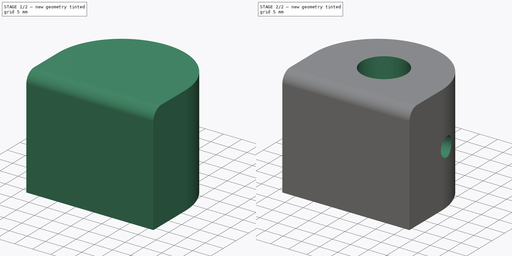
[diagram: build sequence overview — one tinted view per stage of 2, left to right]
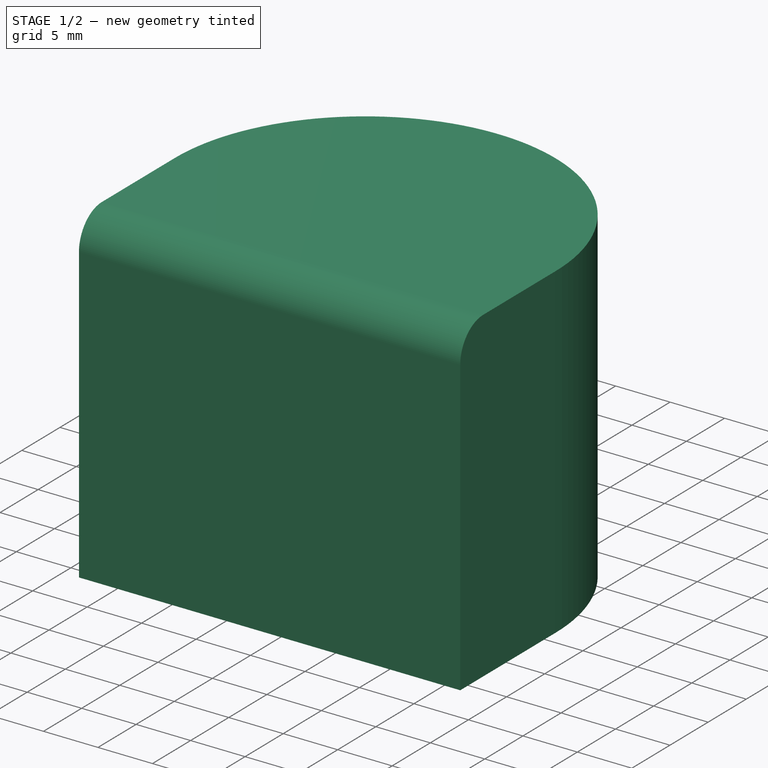
[diagram: stage 1 of 2 — iso view after this stage's code; geometry added in this stage tinted green]
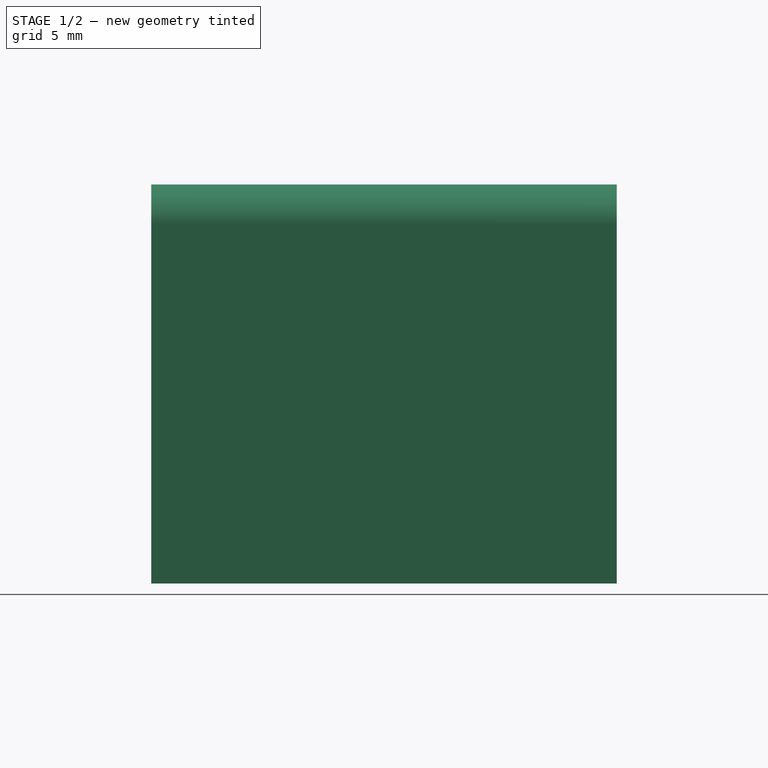
[diagram: stage 1 of 2 — front view after this stage's code; geometry added in this stage tinted green]
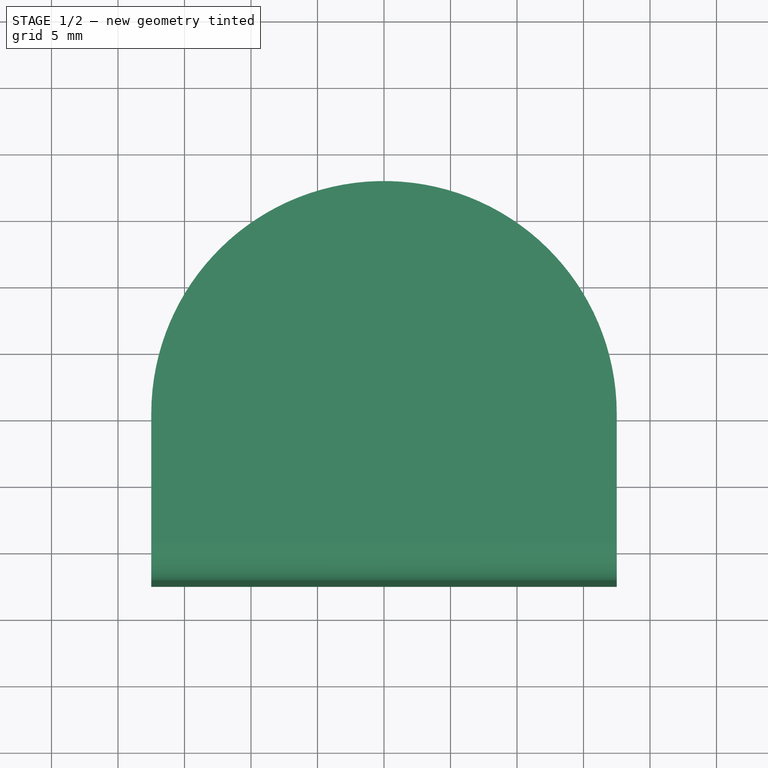
[diagram: stage 1 of 2 — top view after this stage's code; geometry added in this stage tinted green]
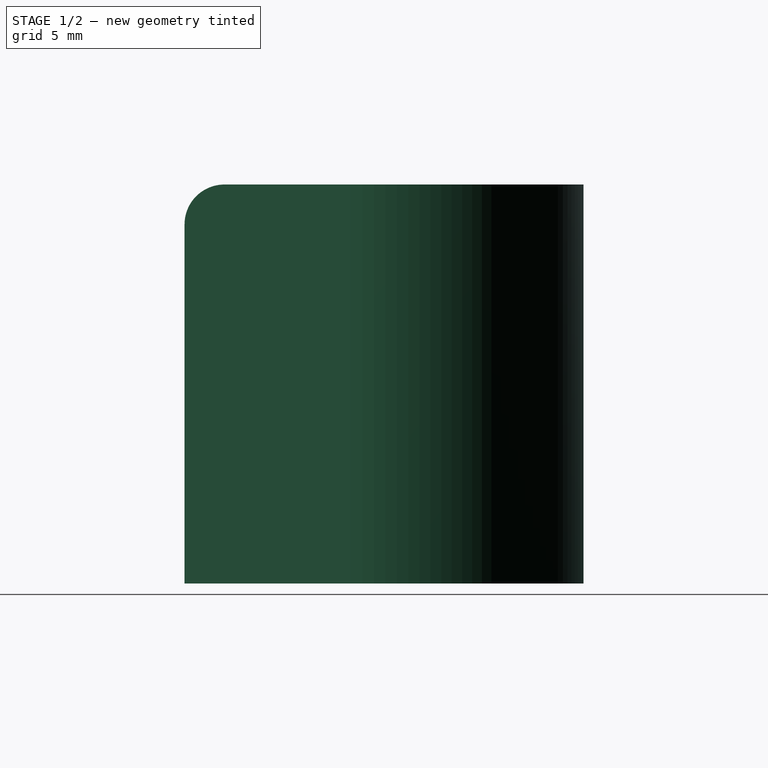
[diagram: stage 1 of 2 — right view after this stage's code; geometry added in this stage tinted green]
FCSTD DOCUMENT  (FreeCAD 0.18R4 (GitTag))
Label: ID-003-00-MRS
License: All rights reserved
LicenseURL: http://en.wikipedia.org/wiki/All_rights_reserved
objects: Sketcher::SketchObject×3, PartDesign::Hole×2, PartDesign::Pad×1, PartDesign::Fillet×1, PartDesign::Body×1
note: 11 computed .brp shape members not serialized (recipe doc carries the construction recipe); baked Part::Feature solids carry a one-line shape summary decoded from their .brp

FEATURE [Sketcher::SketchObject] Sketch
  MapMode = 5
  Support = -> [XY_Plane]
  sketch-geometry (4):
    g0: LineSegment StartX=-17.5 StartY=2.1e-15 StartZ=0 EndX=-17.5 EndY=-12.5 EndZ=0
    g1: LineSegment StartX=-17.5 StartY=-12.5 StartZ=0 EndX=17.5 EndY=-12.5 EndZ=0
    g2: LineSegment StartX=17.5 StartY=-12.5 StartZ=0 EndX=17.5 EndY=0 EndZ=0
    g3: ArcOfCircle CenterX=0 CenterY=0 CenterZ=0 NormalX=0 NormalY=0 NormalZ=1 AngleXU=0 Radius=17.5 StartAngle=0 EndAngle=3.14159
  constraints (15):
    c: Coincident(g0,g1)
    c: Coincident(g1,g2)
    c: Horizontal(g1)
    c: Vertical(g2)
    c: Vertical(g0)
    c: Equal(g2,g0)
    c: Coincident(g2,g3)
    c: Coincident(g0,g3)
    c: Horizontal(g3,g2)
    c: DistanceX(g1,g1) = 35
    c: DistanceY(g1,g3) = 12.5
    c: DistanceX(g0,g3) = 17.5
    c: DistanceY(g0,g0) = 12.5
    c: Radius(g3) = 17.5
    c: Coincident(g3,g-1)
FEATURE [PartDesign::Pad] Pad
  Length = 30
  Length2 = 100
  Midplane = true
  Profile = -> Sketch
  Type = 0
FEATURE [PartDesign::Fillet] Fillet
  Base = -> Pad [Edge7]
  BaseFeature = -> Pad
  Radius = 3
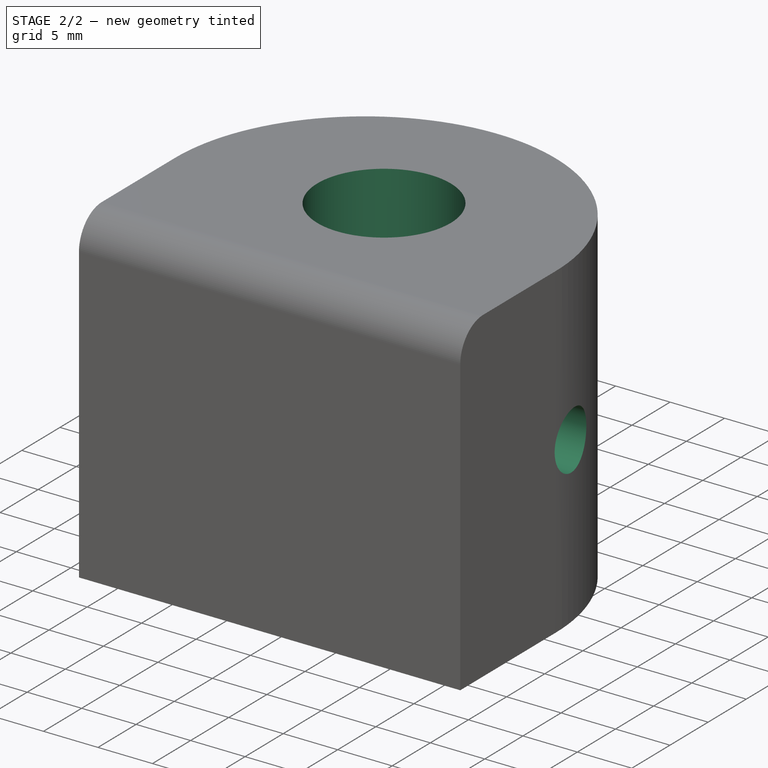
[diagram: stage 2 of 2 — iso view after this stage's code; geometry added in this stage tinted green]
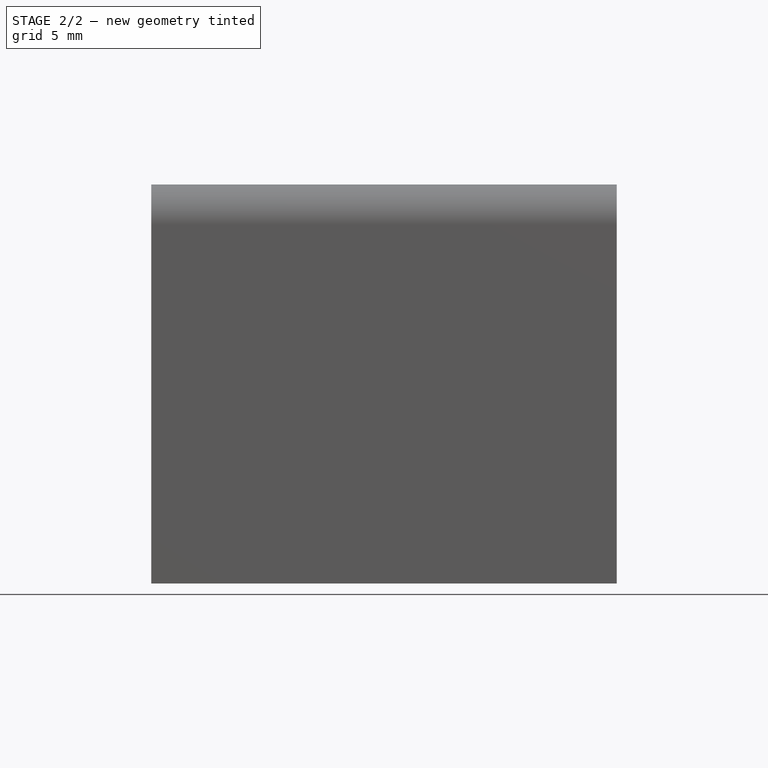
[diagram: stage 2 of 2 — front view after this stage's code; geometry added in this stage tinted green]
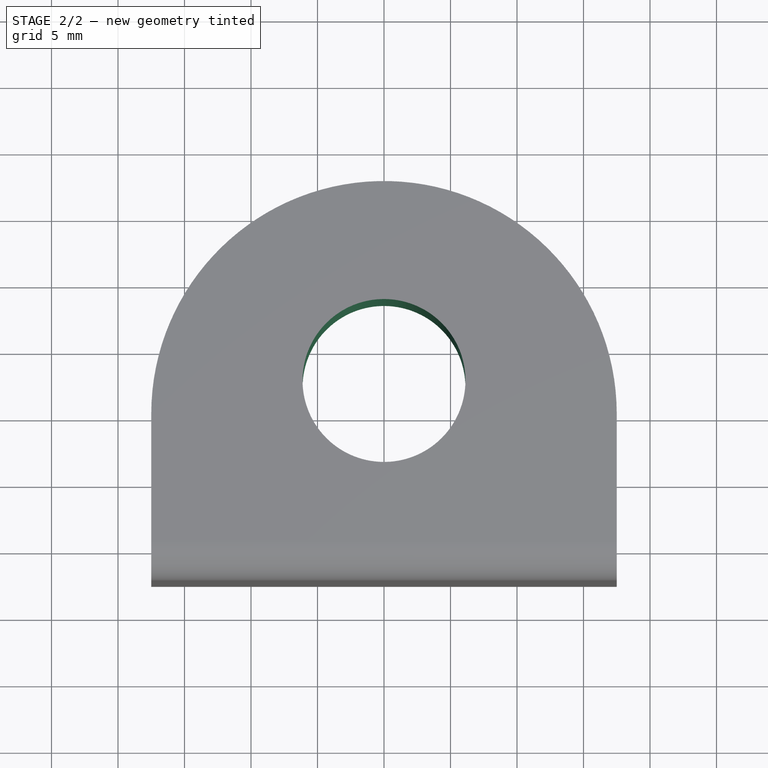
[diagram: stage 2 of 2 — top view after this stage's code; geometry added in this stage tinted green]
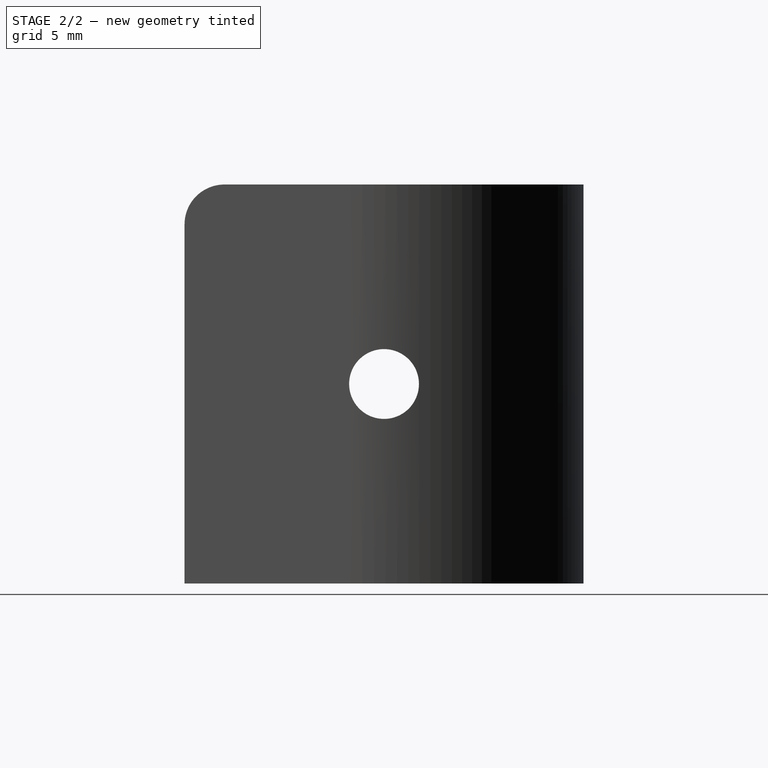
[diagram: stage 2 of 2 — right view after this stage's code; geometry added in this stage tinted green]
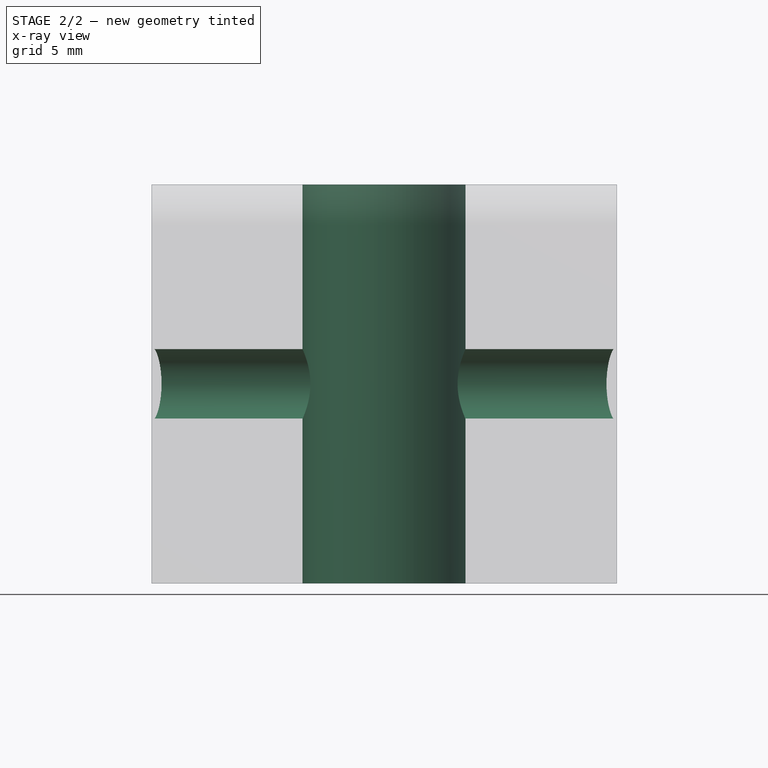
[diagram: stage 2 of 2 — x-ray composite at the front view; earlier geometry ghosted, this stage's added geometry solid]
FEATURE [Sketcher::SketchObject] Sketch001
  MapMode = 5
  Placement = pos=(0,0,15) rot=(0,0,1;0rad)
  Support = -> [Fillet]
  sketch-geometry (1):
    g0: Circle CenterX=0 CenterY=2.5 CenterZ=0 NormalX=0 NormalY=0 NormalZ=1 AngleXU=0 Radius=6.25
  constraints (3):
    c: Radius(g0) = 6.25
    c: PointOnObject(g0,g-2)
    c: DistanceY(g-1,g0) = 2.5
FEATURE [PartDesign::Hole] Hole
  BaseFeature = -> Fillet
  Depth = 25
  DepthType = 1
  Diameter = 12.25
  DrillPoint = 1
  DrillPointAngle = 118
  HoleCutCountersinkAngle = 90
  HoleCutDepth = 0
  HoleCutDiameter = 0
  HoleCutType = 0
  ModelActualThread = false
  Profile = -> Sketch001
  Tapered = false
  TaperedAngle = 90
  ThreadAngle = 0
  ThreadClass = 0
  ThreadCutOffInner = 0
  ThreadCutOffOuter = 0
  ThreadDirection = 0
  ThreadFit = 0
  ThreadPitch = 0
  ThreadSize = 0
  ThreadType = 0
  Threaded = false
FEATURE [Sketcher::SketchObject] Sketch002
  MapMode = 5
  Placement = pos=(17.5,0,0) rot=(0.57735,0.57735,0.57735;2.0944rad)
  Support = -> [Hole]
  sketch-geometry (1):
    g0: Circle CenterX=2.5 CenterY=0 CenterZ=0 NormalX=0 NormalY=0 NormalZ=1 AngleXU=0 Radius=3
  constraints (3):
    c: Diameter(g0) = 6
    c: PointOnObject(g0,g-1)
    c: DistanceX(g-1,g0) = 2.5
FEATURE [PartDesign::Hole] Hole001
  BaseFeature = -> Hole
  Depth = 25
  DepthType = 1
  Diameter = 5.25
  DrillPoint = 1
  DrillPointAngle = 118
  HoleCutCountersinkAngle = 90
  HoleCutDepth = 0
  HoleCutDiameter = 6
  HoleCutType = 0
  ModelActualThread = false
  Profile = -> Sketch002
  Tapered = false
  TaperedAngle = 90
  ThreadAngle = 60
  ThreadClass = 0
  ThreadCutOffInner = 0.0811899
  ThreadCutOffOuter = 0.16238
  ThreadDirection = 1
  ThreadFit = 0
  ThreadPitch = 0.75
  ThreadSize = 15
  ThreadType = 2
  Threaded = true
FEATURE [PartDesign::Body] Body  label="Piatto 30x35 - 40"
  Group = -> [Sketch,Pad,Fillet,Sketch001,Hole,Sketch002,Hole001]
  Origin = -> Origin
  Tip = -> Hole001
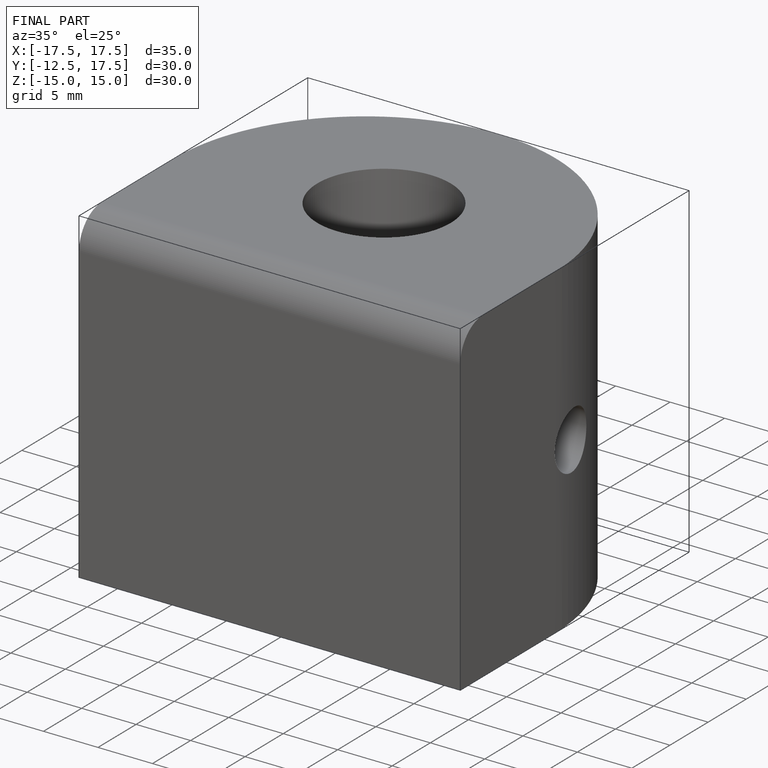
[diagram: finished part — iso view with bounding-box wireframe]
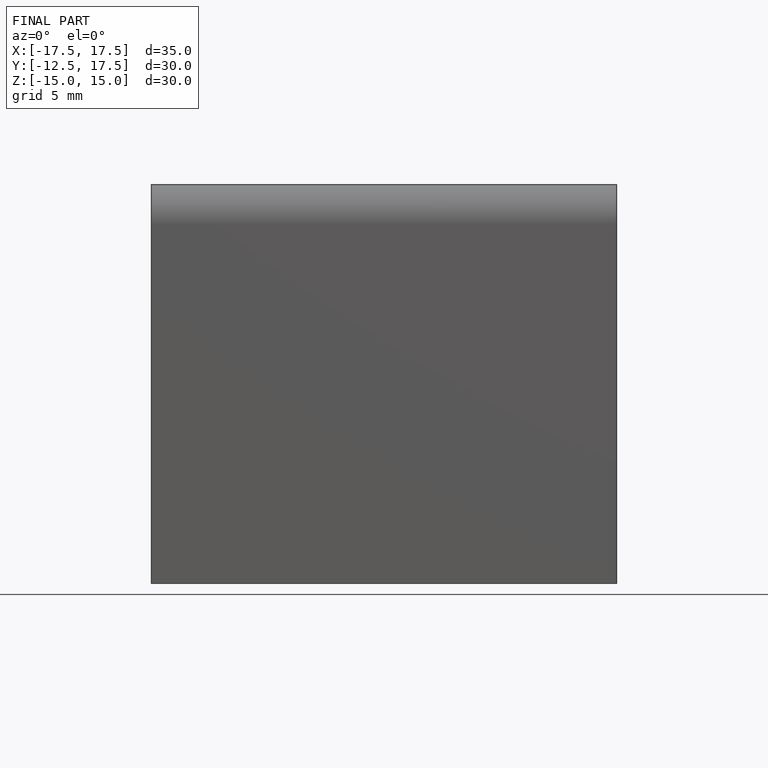
[diagram: finished part — front view with bounding-box wireframe]
